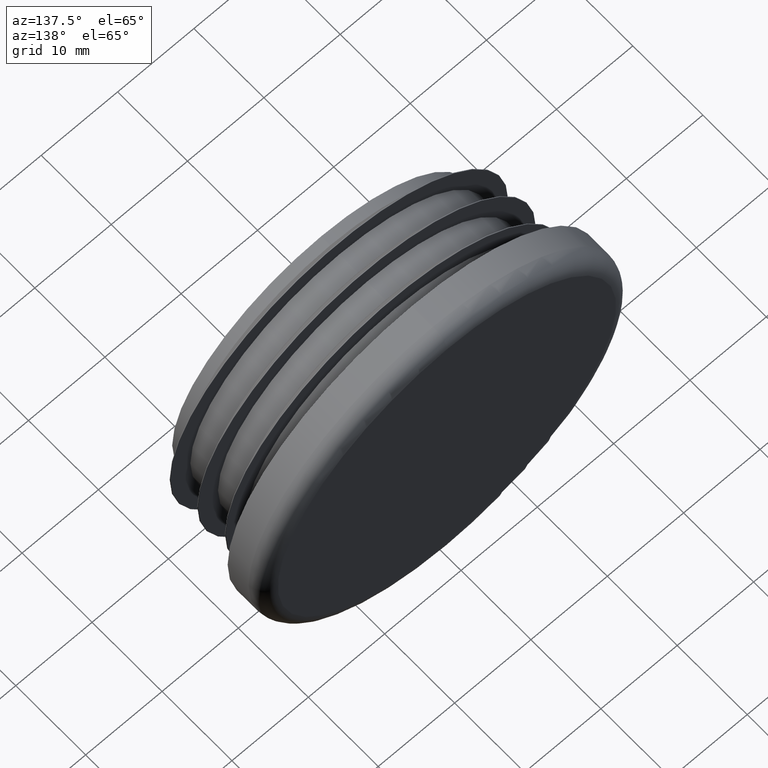
[diagram: clean part render]
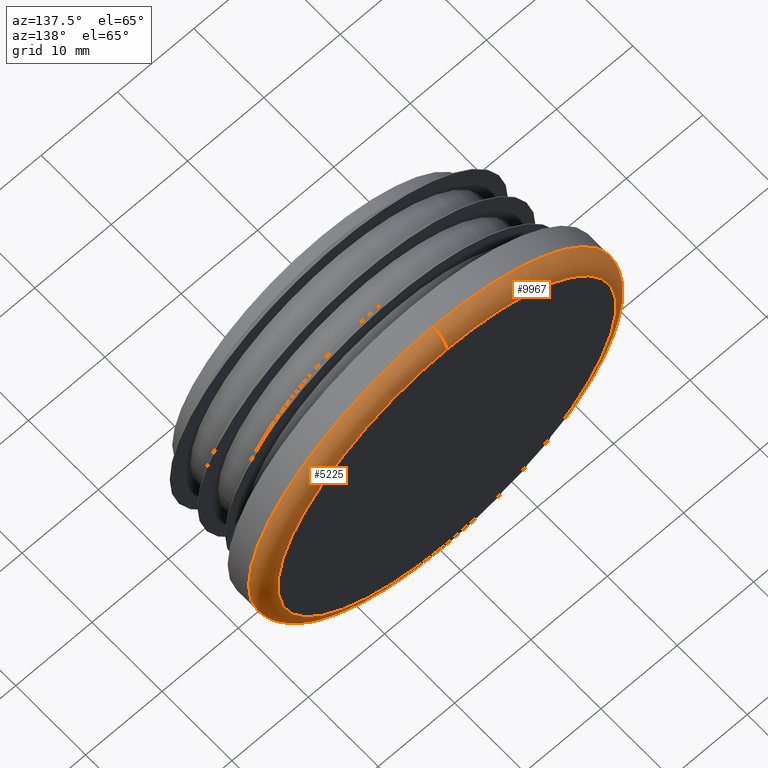
[diagram: same view with one multi-face feature highlighted, each face labeled with its STEP entity id]
A machine part, auxiliary view. The highlighted faces form ONE feature: a constant-radius fillet chain: 2 tangent blend faces with common blend radius 2 mm. The faces share edges in the B-rep.
Their STEP definitions:
[1] entity #5225 (Torus):
#661 = ORIENTED_EDGE ( 'NONE', *, *, #4051, .F. ) ;
#734 = VERTEX_POINT ( 'NONE', #1538 ) ;
#767 = FACE_OUTER_BOUND ( 'NONE', #13101, .T. ) ;
#1538 = CARTESIAN_POINT ( 'NONE',  ( 0.000000000000000000, 15.99999999999999289, -24.14999999999999503 ) ) ;
#1702 = AXIS2_PLACEMENT_3D ( 'NONE', #13719, #9366, #7244 ) ;
#1785 = CARTESIAN_POINT ( 'NONE',  ( 0.000000000000000000, 15.99999999999999289, 22.14999999999999503 ) ) ;
#1835 = DIRECTION ( 'NONE',  ( 0.000000000000000000, 0.000000000000000000, 1.000000000000000000 ) ) ;
#3725 = ORIENTED_EDGE ( 'NONE', *, *, #8920, .F. ) ;
#4051 = EDGE_CURVE ( 'NONE', #8478, #10219, #9129, .T. ) ;
#4156 = DIRECTION ( 'NONE',  ( -1.000000000000000000, 0.000000000000000000, 0.000000000000000000 ) ) ;
#4257 = EDGE_CURVE ( 'NONE', #734, #11049, #6231, .T. ) ;
#4418 = CARTESIAN_POINT ( 'NONE',  ( 2.712592660111386845E-15, 15.99999999999999289, -22.14999999999999503 ) ) ;
#4889 = DIRECTION ( 'NONE',  ( 0.000000000000000000, 0.000000000000000000, 1.000000000000000000 ) ) ;
#4992 = CIRCLE ( 'NONE', #12973, 22.14999999999999503 ) ;
#5157 = DIRECTION ( 'NONE',  ( 0.000000000000000000, 0.000000000000000000, 1.000000000000000000 ) ) ;
#5174 = TOROIDAL_SURFACE ( 'NONE', #1702, 22.14999999999999503, 2.000000000000000000 ) ;
#5190 = CARTESIAN_POINT ( 'NONE',  ( 0.000000000000000000, 17.99999999999999645, 22.14999999999999503 ) ) ;
#5225 = ADVANCED_FACE ( 'NONE', ( #767 ), #5174, .T. ) ;
#6231 = CIRCLE ( 'NONE', #8192, 2.000000000000001776 ) ;
#6291 = EDGE_CURVE ( 'NONE', #10219, #11049, #4992, .T. ) ;
#6914 = DIRECTION ( 'NONE',  ( -0.000000000000000000, -1.000000000000000000, -0.000000000000000000 ) ) ;
#7244 = DIRECTION ( 'NONE',  ( 0.000000000000000000, 0.000000000000000000, 1.000000000000000000 ) ) ;
#7418 = CARTESIAN_POINT ( 'NONE',  ( 0.000000000000000000, 17.99999999999999645, 0.000000000000000000 ) ) ;
#8020 = AXIS2_PLACEMENT_3D ( 'NONE', #11388, #6914, #4889 ) ;
#8192 = AXIS2_PLACEMENT_3D ( 'NONE', #4418, #13088, #13047 ) ;
#8478 = VERTEX_POINT ( 'NONE', #13378 ) ;
#8920 = EDGE_CURVE ( 'NONE', #734, #8478, #10847, .T. ) ;
#9129 = CIRCLE ( 'NONE', #11367, 2.000000000000001776 ) ;
#9366 = DIRECTION ( 'NONE',  ( 0.000000000000000000, 1.000000000000000000, 0.000000000000000000 ) ) ;
#10219 = VERTEX_POINT ( 'NONE', #5190 ) ;
#10847 = CIRCLE ( 'NONE', #8020, 24.14999999999999503 ) ;
#11049 = VERTEX_POINT ( 'NONE', #11649 ) ;
#11367 = AXIS2_PLACEMENT_3D ( 'NONE', #1785, #4156, #1835 ) ;
#11388 = CARTESIAN_POINT ( 'NONE',  ( 0.000000000000000000, 15.99999999999999289, 0.000000000000000000 ) ) ;
#11649 = CARTESIAN_POINT ( 'NONE',  ( 2.835057340026122387E-15, 17.99999999999999645, -22.14999999999999503 ) ) ;
#12496 = ORIENTED_EDGE ( 'NONE', *, *, #4257, .T. ) ;
#12782 = ORIENTED_EDGE ( 'NONE', *, *, #6291, .F. ) ;
#12973 = AXIS2_PLACEMENT_3D ( 'NONE', #7418, #13808, #5157 ) ;
#13047 = DIRECTION ( 'NONE',  ( 1.224646799147351482E-16, 0.000000000000000000, -1.000000000000000000 ) ) ;
#13088 = DIRECTION ( 'NONE',  ( 1.000000000000000000, -0.000000000000000000, 1.224646799147353207E-16 ) ) ;
#13101 = EDGE_LOOP ( 'NONE', ( #3725, #12496, #12782, #661 ) ) ;
#13378 = CARTESIAN_POINT ( 'NONE',  ( 2.957522019940857536E-15, 15.99999999999999289, 24.14999999999999503 ) ) ;
#13719 = CARTESIAN_POINT ( 'NONE',  ( 0.000000000000000000, 15.99999999999999289, 0.000000000000000000 ) ) ;
#13808 = DIRECTION ( 'NONE',  ( 0.000000000000000000, 1.000000000000000000, 0.000000000000000000 ) ) ;
[2] entity #9967 (Torus):
#303 = AXIS2_PLACEMENT_3D ( 'NONE', #6868, #3636, #2399 ) ;
#582 = CARTESIAN_POINT ( 'NONE',  ( 0.000000000000000000, 15.99999999999999289, 0.000000000000000000 ) ) ;
#734 = VERTEX_POINT ( 'NONE', #1538 ) ;
#1538 = CARTESIAN_POINT ( 'NONE',  ( 0.000000000000000000, 15.99999999999999289, -24.14999999999999503 ) ) ;
#1785 = CARTESIAN_POINT ( 'NONE',  ( 0.000000000000000000, 15.99999999999999289, 22.14999999999999503 ) ) ;
#1835 = DIRECTION ( 'NONE',  ( 0.000000000000000000, 0.000000000000000000, 1.000000000000000000 ) ) ;
#1936 = EDGE_CURVE ( 'NONE', #8478, #734, #2788, .T. ) ;
#2054 = CIRCLE ( 'NONE', #303, 22.14999999999999503 ) ;
#2399 = DIRECTION ( 'NONE',  ( 0.000000000000000000, 0.000000000000000000, 1.000000000000000000 ) ) ;
#2788 = CIRCLE ( 'NONE', #9087, 24.14999999999999503 ) ;
#3636 = DIRECTION ( 'NONE',  ( 0.000000000000000000, 1.000000000000000000, 0.000000000000000000 ) ) ;
#4051 = EDGE_CURVE ( 'NONE', #8478, #10219, #9129, .T. ) ;
#4156 = DIRECTION ( 'NONE',  ( -1.000000000000000000, 0.000000000000000000, 0.000000000000000000 ) ) ;
#4257 = EDGE_CURVE ( 'NONE', #734, #11049, #6231, .T. ) ;
#4418 = CARTESIAN_POINT ( 'NONE',  ( 2.712592660111386845E-15, 15.99999999999999289, -22.14999999999999503 ) ) ;
#5190 = CARTESIAN_POINT ( 'NONE',  ( 0.000000000000000000, 17.99999999999999645, 22.14999999999999503 ) ) ;
#5922 = FACE_OUTER_BOUND ( 'NONE', #8362, .T. ) ;
#5927 = ORIENTED_EDGE ( 'NONE', *, *, #4051, .T. ) ;
#6231 = CIRCLE ( 'NONE', #8192, 2.000000000000001776 ) ;
#6315 = ORIENTED_EDGE ( 'NONE', *, *, #4257, .F. ) ;
#6868 = CARTESIAN_POINT ( 'NONE',  ( 0.000000000000000000, 17.99999999999999645, 0.000000000000000000 ) ) ;
#7514 = EDGE_CURVE ( 'NONE', #11049, #10219, #2054, .T. ) ;
#7620 = ORIENTED_EDGE ( 'NONE', *, *, #7514, .F. ) ;
#8112 = TOROIDAL_SURFACE ( 'NONE', #11220, 22.14999999999999503, 2.000000000000000000 ) ;
#8192 = AXIS2_PLACEMENT_3D ( 'NONE', #4418, #13088, #13047 ) ;
#8355 = ORIENTED_EDGE ( 'NONE', *, *, #1936, .F. ) ;
#8362 = EDGE_LOOP ( 'NONE', ( #6315, #8355, #5927, #7620 ) ) ;
#8478 = VERTEX_POINT ( 'NONE', #13378 ) ;
#8599 = DIRECTION ( 'NONE',  ( 0.000000000000000000, 0.000000000000000000, 1.000000000000000000 ) ) ;
#9087 = AXIS2_PLACEMENT_3D ( 'NONE', #582, #9265, #10537 ) ;
#9129 = CIRCLE ( 'NONE', #11367, 2.000000000000001776 ) ;
#9265 = DIRECTION ( 'NONE',  ( -0.000000000000000000, -1.000000000000000000, -0.000000000000000000 ) ) ;
#9967 = ADVANCED_FACE ( 'NONE', ( #5922 ), #8112, .T. ) ;
#10219 = VERTEX_POINT ( 'NONE', #5190 ) ;
#10537 = DIRECTION ( 'NONE',  ( 0.000000000000000000, 0.000000000000000000, 1.000000000000000000 ) ) ;
#11049 = VERTEX_POINT ( 'NONE', #11649 ) ;
#11220 = AXIS2_PLACEMENT_3D ( 'NONE', #11890, #12879, #8599 ) ;
#11367 = AXIS2_PLACEMENT_3D ( 'NONE', #1785, #4156, #1835 ) ;
#11649 = CARTESIAN_POINT ( 'NONE',  ( 2.835057340026122387E-15, 17.99999999999999645, -22.14999999999999503 ) ) ;
#11890 = CARTESIAN_POINT ( 'NONE',  ( 0.000000000000000000, 15.99999999999999289, 0.000000000000000000 ) ) ;
#12879 = DIRECTION ( 'NONE',  ( 0.000000000000000000, 1.000000000000000000, 0.000000000000000000 ) ) ;
#13047 = DIRECTION ( 'NONE',  ( 1.224646799147351482E-16, 0.000000000000000000, -1.000000000000000000 ) ) ;
#13088 = DIRECTION ( 'NONE',  ( 1.000000000000000000, -0.000000000000000000, 1.224646799147353207E-16 ) ) ;
#13378 = CARTESIAN_POINT ( 'NONE',  ( 2.957522019940857536E-15, 15.99999999999999289, 24.14999999999999503 ) ) ;